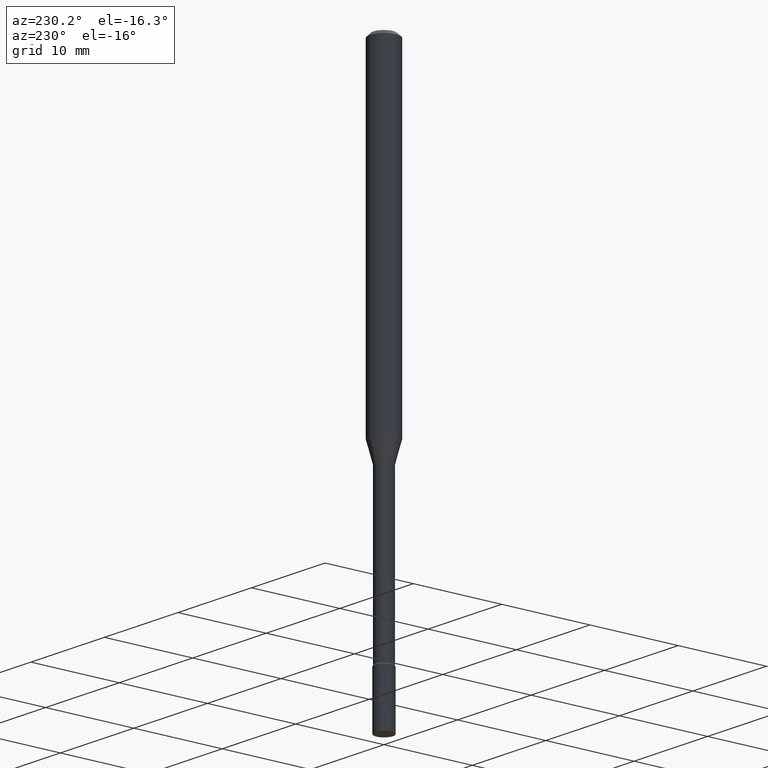
[diagram: clean part render]
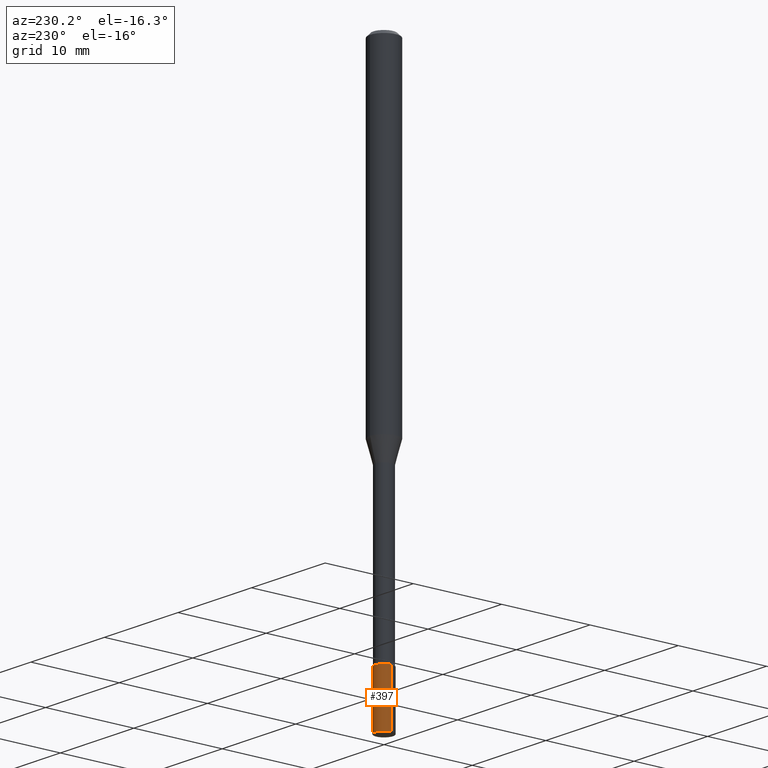
[diagram: same view with one face highlighted and labeled with its STEP entity id]
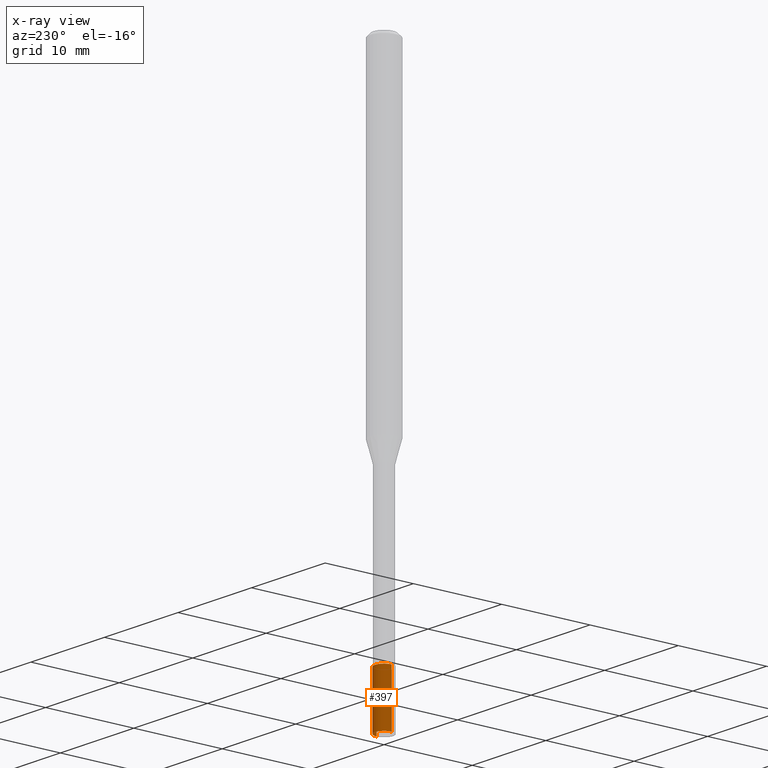
[diagram: x-ray of the same camera — body ghosted, the highlighted face saturated]
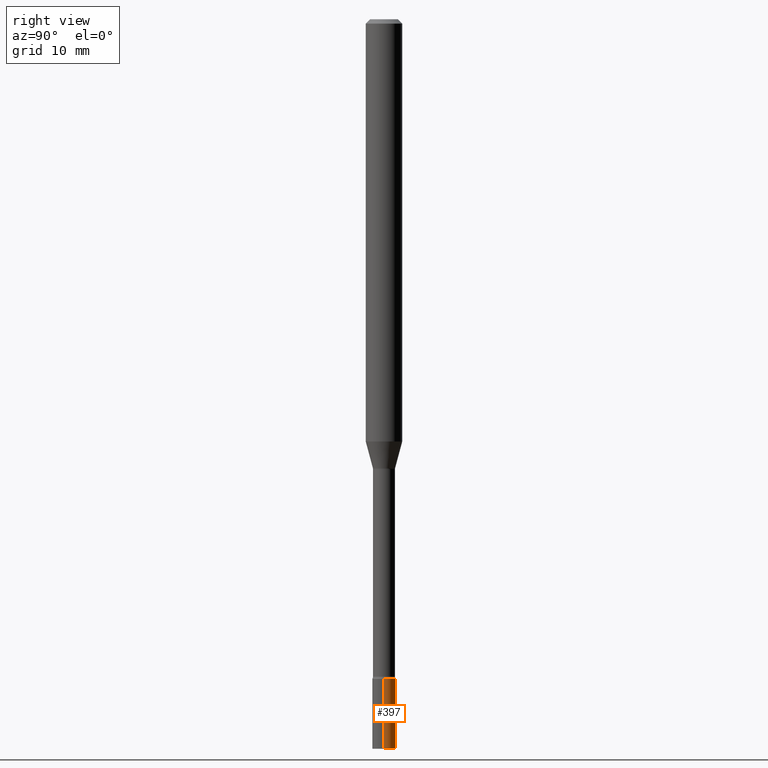
[diagram: same view with one face highlighted and labeled with its STEP entity id]
A machine part, auxiliary view. The second image highlights one B-rep face of the part: STEP entity #397.
The next image is the same camera in x-ray: the body ghosted, the highlighted face saturated — about 0% of this face is hidden behind the body in this view.
A second angle (right view) of the same face is appended — the face is thin or edge-on in the first view.
In plain terms, the highlighted cylindrical surface (edge-blend (fillet) strip) has radius 1.016 mm, axis along (-0, 0, 1).
Its self-contained STEP definition (entity closure, byte-faithful):
#17 = ORIENTED_EDGE ( 'NONE', *, *, #326, .T. ) ;
#36 = AXIS2_PLACEMENT_3D ( 'NONE', #220, #99, #134 ) ;
#54 = CIRCLE ( 'NONE', #481, 0.04000000000000000083 ) ;
#57 = VERTEX_POINT ( 'NONE', #158 ) ;
#60 = CARTESIAN_POINT ( 'NONE',  ( 0.04000000000000000083, -2.793185071074506290E-16, 1.950470710318374387E-30 ) ) ;
#72 = EDGE_LOOP ( 'NONE', ( #17, #190, #453, #231 ) ) ;
#92 = VERTEX_POINT ( 'NONE', #159 ) ;
#99 = DIRECTION ( 'NONE',  ( -2.445468806185136597E-29, 3.491481338843145583E-15, 1.000000000000000000 ) ) ;
#100 = VERTEX_POINT ( 'NONE', #327 ) ;
#102 = DIRECTION ( 'NONE',  ( 1.000000000000000000, -6.982962677686259611E-15, 0.000000000000000000 ) ) ;
#113 = AXIS2_PLACEMENT_3D ( 'NONE', #265, #421, #102 ) ;
#134 = DIRECTION ( 'NONE',  ( 1.000000000000000000, -6.982962677686265922E-15, 4.876176775795935793E-29 ) ) ;
#148 = LINE ( 'NONE', #223, #153 ) ;
#153 = VECTOR ( 'NONE', #414, 39.37007874015748143 ) ;
#158 = CARTESIAN_POINT ( 'NONE',  ( 0.04000000000000000083, -9.008021854215314980E-15, -2.500000000000000000 ) ) ;
#159 = CARTESIAN_POINT ( 'NONE',  ( 0.04000000000000000083, -8.170066332892960135E-15, -2.260000000000000231 ) ) ;
#166 = VECTOR ( 'NONE', #499, 39.37007874015748143 ) ;
#190 = ORIENTED_EDGE ( 'NONE', *, *, #285, .T. ) ;
#220 = CARTESIAN_POINT ( 'NONE',  ( 0.000000000000000000, 0.000000000000000000, 0.000000000000000000 ) ) ;
#223 = CARTESIAN_POINT ( 'NONE',  ( -0.04000000000000000083, 2.842170943040400803E-16, -1.967574036101962509E-30 ) ) ;
#231 = ORIENTED_EDGE ( 'NONE', *, *, #280, .F. ) ;
#260 = EDGE_CURVE ( 'NONE', #92, #382, #54, .T. ) ;
#265 = CARTESIAN_POINT ( 'NONE',  ( 6.113672015462842613E-29, -8.728703347107864943E-15, -2.500000000000000000 ) ) ;
#280 = EDGE_CURVE ( 'NONE', #57, #92, #339, .T. ) ;
#285 = EDGE_CURVE ( 'NONE', #100, #382, #148, .T. ) ;
#309 = CYLINDRICAL_SURFACE ( 'NONE', #36, 0.04000000000000000083 ) ;
#326 = EDGE_CURVE ( 'NONE', #57, #100, #359, .T. ) ;
#327 = CARTESIAN_POINT ( 'NONE',  ( -0.04000000000000000083, -8.025508492142646404E-15, -2.500000000000000000 ) ) ;
#330 = DIRECTION ( 'NONE',  ( -2.445468806185136597E-29, 3.491481338843145583E-15, 1.000000000000000000 ) ) ;
#339 = LINE ( 'NONE', #60, #166 ) ;
#359 = CIRCLE ( 'NONE', #113, 0.04000000000000000083 ) ;
#382 = VERTEX_POINT ( 'NONE', #427 ) ;
#397 = ADVANCED_FACE ( 'NONE', ( #503 ), #309, .T. ) ;
#414 = DIRECTION ( 'NONE',  ( -2.445468806185136877E-29, 3.491481338843145188E-15, 1.000000000000000000 ) ) ;
#421 = DIRECTION ( 'NONE',  ( -2.445468806185136597E-29, 3.491481338843145583E-15, 1.000000000000000000 ) ) ;
#427 = CARTESIAN_POINT ( 'NONE',  ( -0.04000000000000000083, -8.025508492142646404E-15, -2.260000000000000231 ) ) ;
#445 = DIRECTION ( 'NONE',  ( 1.000000000000000000, -6.982962677686259611E-15, 0.000000000000000000 ) ) ;
#453 = ORIENTED_EDGE ( 'NONE', *, *, #260, .F. ) ;
#481 = AXIS2_PLACEMENT_3D ( 'NONE', #483, #330, #445 ) ;
#483 = CARTESIAN_POINT ( 'NONE',  ( 5.526759501978408888E-29, -7.890747825785510097E-15, -2.260000000000000231 ) ) ;
#499 = DIRECTION ( 'NONE',  ( -2.445468806185136877E-29, 3.491481338843145188E-15, 1.000000000000000000 ) ) ;
#503 = FACE_OUTER_BOUND ( 'NONE', #72, .T. ) ;